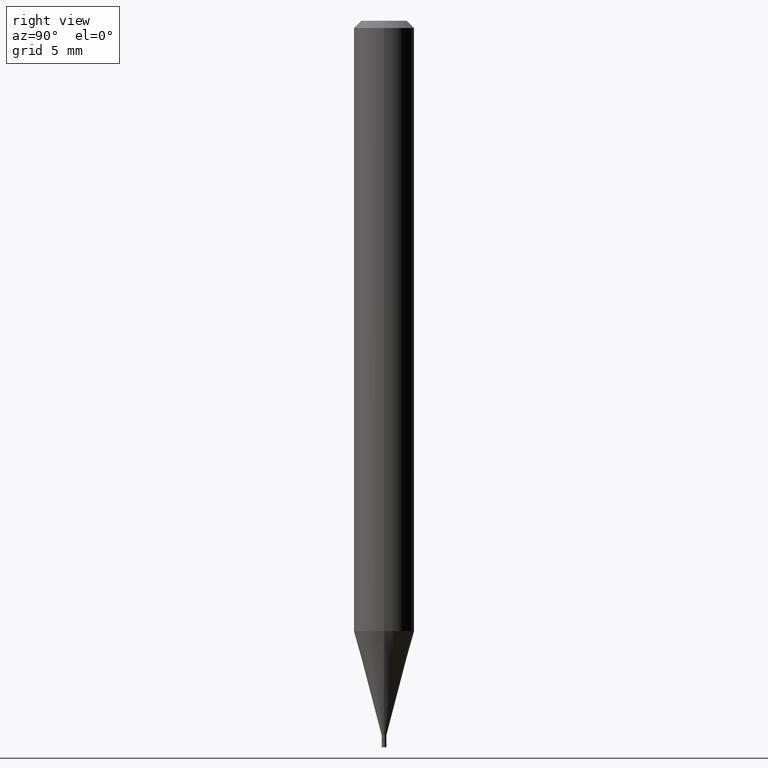
[diagram: clean part render]
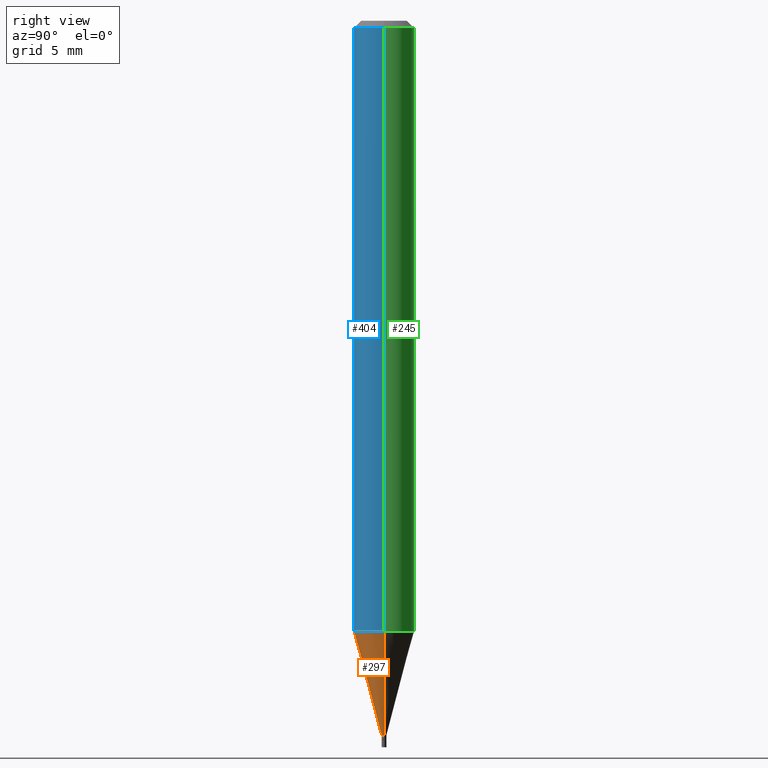
[diagram: same view with three faces highlighted in distinct colors, each labeled with its STEP entity id]
A machine part, right view with three faces highlighted in distinct colors.
Their STEP definitions:

[orange] entity #297 — the highlighted conical surface has half-angle 15 deg.
#16 = CONICAL_SURFACE ( 'NONE', #145, 0.004999999999999922042, 0.2617993877991500740 ) ;
#27 = VECTOR ( 'NONE', #324, 39.37007874015747433 ) ;
#29 = EDGE_LOOP ( 'NONE', ( #387, #248, #351, #170 ) ) ;
#34 = DIRECTION ( 'NONE',  ( -2.445468806185136597E-29, 3.491481338843145583E-15, 1.000000000000000000 ) ) ;
#38 = LINE ( 'NONE', #466, #389 ) ;
#54 = AXIS2_PLACEMENT_3D ( 'NONE', #241, #203, #342 ) ;
#68 = CARTESIAN_POINT ( 'NONE',  ( 0.004999999999999922042, -5.184849788182071492E-15, -1.475000000000000311 ) ) ;
#74 = DIRECTION ( 'NONE',  ( -2.445468806185136597E-29, 3.491481338843145583E-15, 1.000000000000000000 ) ) ;
#101 = CARTESIAN_POINT ( 'NONE',  ( 0.004999999999999922042, -5.184849788182071492E-15, -1.475000000000000311 ) ) ;
#144 = DIRECTION ( 'NONE',  ( -0.2588190451025213501, 5.211531920934551042E-15, 0.9659258262890682012 ) ) ;
#145 = AXIS2_PLACEMENT_3D ( 'NONE', #223, #74, #357 ) ;
#159 = EDGE_CURVE ( 'NONE', #174, #392, #194, .T. ) ;
#163 = AXIS2_PLACEMENT_3D ( 'NONE', #224, #34, #364 ) ;
#170 = ORIENTED_EDGE ( 'NONE', *, *, #159, .F. ) ;
#174 = VERTEX_POINT ( 'NONE', #420 ) ;
#183 = LINE ( 'NONE', #68, #27 ) ;
#194 = CIRCLE ( 'NONE', #54, 0.06250000000000000000 ) ;
#203 = DIRECTION ( 'NONE',  ( -2.445468806185136597E-29, 3.491481338843145583E-15, 1.000000000000000000 ) ) ;
#217 = FACE_OUTER_BOUND ( 'NONE', #29, .T. ) ;
#223 = CARTESIAN_POINT ( 'NONE',  ( 3.607066489123076592E-29, -5.149934974793640632E-15, -1.475000000000000311 ) ) ;
#224 = CARTESIAN_POINT ( 'NONE',  ( 3.607066489123076592E-29, -5.149934974793640632E-15, -1.475000000000000311 ) ) ;
#241 = CARTESIAN_POINT ( 'NONE',  ( 3.082286193725132894E-29, -4.400687794154770769E-15, -1.260407078564790062 ) ) ;
#248 = ORIENTED_EDGE ( 'NONE', *, *, #306, .T. ) ;
#257 = CARTESIAN_POINT ( 'NONE',  ( 0.06249999999999999306, -4.837122961510163228E-15, -1.260407078564790062 ) ) ;
#274 = VERTEX_POINT ( 'NONE', #390 ) ;
#295 = CIRCLE ( 'NONE', #163, 0.004999999999999922042 ) ;
#297 = ADVANCED_FACE ( 'NONE', ( #217 ), #16, .T. ) ;
#306 = EDGE_CURVE ( 'NONE', #274, #383, #295, .T. ) ;
#324 = DIRECTION ( 'NONE',  ( 0.2588190451025213501, 1.565188264969621968E-15, 0.9659258262890682012 ) ) ;
#342 = DIRECTION ( 'NONE',  ( 1.000000000000000000, -6.982962677686262766E-15, 0.000000000000000000 ) ) ;
#351 = ORIENTED_EDGE ( 'NONE', *, *, #431, .T. ) ;
#357 = DIRECTION ( 'NONE',  ( 1.000000000000000000, -6.982962677686247778E-15, 0.000000000000000000 ) ) ;
#364 = DIRECTION ( 'NONE',  ( 1.000000000000000000, -6.982962677686247778E-15, 0.000000000000000000 ) ) ;
#383 = VERTEX_POINT ( 'NONE', #101 ) ;
#387 = ORIENTED_EDGE ( 'NONE', *, *, #443, .F. ) ;
#389 = VECTOR ( 'NONE', #144, 39.37007874015747433 ) ;
#390 = CARTESIAN_POINT ( 'NONE',  ( -0.004999999999999922042, -4.535503211155172266E-15, -1.475000000000000311 ) ) ;
#392 = VERTEX_POINT ( 'NONE', #257 ) ;
#420 = CARTESIAN_POINT ( 'NONE',  ( -0.06249999999999999306, -3.956598584304708153E-15, -1.260407078564790062 ) ) ;
#431 = EDGE_CURVE ( 'NONE', #383, #392, #183, .T. ) ;
#443 = EDGE_CURVE ( 'NONE', #274, #174, #38, .T. ) ;
#466 = CARTESIAN_POINT ( 'NONE',  ( -0.004999999999999922042, -5.114407838005636380E-15, -1.475000000000000311 ) ) ;

[blue] entity #404 — the highlighted cylindrical surface (edge-blend (fillet) strip) has radius 1.5875 mm, axis along (-0, 0, 1).
#39 = CARTESIAN_POINT ( 'NONE',  ( -0.06250000000000000000, -1.782440797268646111E-15, -0.01499999999999999944 ) ) ;
#54 = AXIS2_PLACEMENT_3D ( 'NONE', #241, #203, #342 ) ;
#56 = ORIENTED_EDGE ( 'NONE', *, *, #363, .T. ) ;
#70 = CYLINDRICAL_SURFACE ( 'NONE', #272, 0.06250000000000000000 ) ;
#73 = FACE_OUTER_BOUND ( 'NONE', #291, .T. ) ;
#91 = VECTOR ( 'NONE', #378, 39.37007874015748143 ) ;
#108 = DIRECTION ( 'NONE',  ( 1.000000000000000000, -6.982962677686266711E-15, 0.000000000000000000 ) ) ;
#129 = ORIENTED_EDGE ( 'NONE', *, *, #352, .F. ) ;
#139 = AXIS2_PLACEMENT_3D ( 'NONE', #182, #178, #108 ) ;
#159 = EDGE_CURVE ( 'NONE', #174, #392, #194, .T. ) ;
#174 = VERTEX_POINT ( 'NONE', #420 ) ;
#178 = DIRECTION ( 'NONE',  ( -2.445468806185136597E-29, 3.491481338843145583E-15, 1.000000000000000000 ) ) ;
#182 = CARTESIAN_POINT ( 'NONE',  ( 3.668203209277705088E-31, -5.237222008264718399E-17, -0.01499999999999999944 ) ) ;
#194 = CIRCLE ( 'NONE', #54, 0.06250000000000000000 ) ;
#203 = DIRECTION ( 'NONE',  ( -2.445468806185136597E-29, 3.491481338843145583E-15, 1.000000000000000000 ) ) ;
#219 = CARTESIAN_POINT ( 'NONE',  ( 0.000000000000000000, 0.000000000000000000, 0.000000000000000000 ) ) ;
#234 = EDGE_CURVE ( 'NONE', #174, #347, #376, .T. ) ;
#241 = CARTESIAN_POINT ( 'NONE',  ( 3.082286193725132894E-29, -4.400687794154770769E-15, -1.260407078564790062 ) ) ;
#254 = DIRECTION ( 'NONE',  ( -2.445468806185136877E-29, 3.491481338843145188E-15, 1.000000000000000000 ) ) ;
#257 = CARTESIAN_POINT ( 'NONE',  ( 0.06249999999999999306, -4.837122961510163228E-15, -1.260407078564790062 ) ) ;
#259 = DIRECTION ( 'NONE',  ( -2.445468806185136597E-29, 3.491481338843145583E-15, 1.000000000000000000 ) ) ;
#272 = AXIS2_PLACEMENT_3D ( 'NONE', #219, #259, #294 ) ;
#282 = ORIENTED_EDGE ( 'NONE', *, *, #234, .F. ) ;
#291 = EDGE_LOOP ( 'NONE', ( #282, #428, #56, #129 ) ) ;
#294 = DIRECTION ( 'NONE',  ( 1.000000000000000000, -6.982962677686266711E-15, 4.876176775795935793E-29 ) ) ;
#320 = CARTESIAN_POINT ( 'NONE',  ( 0.06250000000000000000, -4.364351673553916694E-16, 3.047610484872459871E-30 ) ) ;
#322 = VECTOR ( 'NONE', #254, 39.37007874015748143 ) ;
#342 = DIRECTION ( 'NONE',  ( 1.000000000000000000, -6.982962677686262766E-15, 0.000000000000000000 ) ) ;
#344 = CIRCLE ( 'NONE', #139, 0.06250000000000000000 ) ;
#347 = VERTEX_POINT ( 'NONE', #39 ) ;
#352 = EDGE_CURVE ( 'NONE', #347, #409, #344, .T. ) ;
#358 = CARTESIAN_POINT ( 'NONE',  ( 0.06250000000000000000, -4.888073874380388472E-16, -0.01499999999999999944 ) ) ;
#361 = LINE ( 'NONE', #320, #322 ) ;
#363 = EDGE_CURVE ( 'NONE', #392, #409, #361, .T. ) ;
#376 = LINE ( 'NONE', #411, #91 ) ;
#378 = DIRECTION ( 'NONE',  ( -2.445468806185136877E-29, 3.491481338843145188E-15, 1.000000000000000000 ) ) ;
#392 = VERTEX_POINT ( 'NONE', #257 ) ;
#404 = ADVANCED_FACE ( 'NONE', ( #73 ), #70, .T. ) ;
#409 = VERTEX_POINT ( 'NONE', #358 ) ;
#411 = CARTESIAN_POINT ( 'NONE',  ( -0.06250000000000000000, 4.440892098500626162E-16, -3.074334431409316114E-30 ) ) ;
#420 = CARTESIAN_POINT ( 'NONE',  ( -0.06249999999999999306, -3.956598584304708153E-15, -1.260407078564790062 ) ) ;
#428 = ORIENTED_EDGE ( 'NONE', *, *, #159, .T. ) ;

[green] entity #245 — the highlighted cylindrical surface (edge-blend (fillet) strip) has radius 1.5875 mm, axis along (-0, 0, 1).
#25 = ORIENTED_EDGE ( 'NONE', *, *, #326, .T. ) ;
#39 = CARTESIAN_POINT ( 'NONE',  ( -0.06250000000000000000, -1.782440797268646111E-15, -0.01499999999999999944 ) ) ;
#57 = CYLINDRICAL_SURFACE ( 'NONE', #271, 0.06250000000000000000 ) ;
#59 = ORIENTED_EDGE ( 'NONE', *, *, #62, .F. ) ;
#62 = EDGE_CURVE ( 'NONE', #409, #347, #460, .T. ) ;
#64 = DIRECTION ( 'NONE',  ( 1.000000000000000000, -6.982962677686266711E-15, 4.876176775795935793E-29 ) ) ;
#67 = ORIENTED_EDGE ( 'NONE', *, *, #234, .T. ) ;
#91 = VECTOR ( 'NONE', #378, 39.37007874015748143 ) ;
#97 = CARTESIAN_POINT ( 'NONE',  ( 0.000000000000000000, 0.000000000000000000, 0.000000000000000000 ) ) ;
#174 = VERTEX_POINT ( 'NONE', #420 ) ;
#230 = DIRECTION ( 'NONE',  ( -2.445468806185136597E-29, 3.491481338843145583E-15, 1.000000000000000000 ) ) ;
#234 = EDGE_CURVE ( 'NONE', #174, #347, #376, .T. ) ;
#236 = FACE_OUTER_BOUND ( 'NONE', #244, .T. ) ;
#244 = EDGE_LOOP ( 'NONE', ( #25, #67, #59, #450 ) ) ;
#245 = ADVANCED_FACE ( 'NONE', ( #236 ), #57, .T. ) ;
#249 = AXIS2_PLACEMENT_3D ( 'NONE', #325, #362, #323 ) ;
#254 = DIRECTION ( 'NONE',  ( -2.445468806185136877E-29, 3.491481338843145188E-15, 1.000000000000000000 ) ) ;
#257 = CARTESIAN_POINT ( 'NONE',  ( 0.06249999999999999306, -4.837122961510163228E-15, -1.260407078564790062 ) ) ;
#260 = DIRECTION ( 'NONE',  ( 1.000000000000000000, -6.982962677686266711E-15, 0.000000000000000000 ) ) ;
#271 = AXIS2_PLACEMENT_3D ( 'NONE', #97, #313, #64 ) ;
#313 = DIRECTION ( 'NONE',  ( -2.445468806185136597E-29, 3.491481338843145583E-15, 1.000000000000000000 ) ) ;
#320 = CARTESIAN_POINT ( 'NONE',  ( 0.06250000000000000000, -4.364351673553916694E-16, 3.047610484872459871E-30 ) ) ;
#322 = VECTOR ( 'NONE', #254, 39.37007874015748143 ) ;
#323 = DIRECTION ( 'NONE',  ( 1.000000000000000000, -6.982962677686262766E-15, 0.000000000000000000 ) ) ;
#325 = CARTESIAN_POINT ( 'NONE',  ( 3.082286193725132894E-29, -4.400687794154770769E-15, -1.260407078564790062 ) ) ;
#326 = EDGE_CURVE ( 'NONE', #392, #174, #328, .T. ) ;
#328 = CIRCLE ( 'NONE', #249, 0.06250000000000000000 ) ;
#347 = VERTEX_POINT ( 'NONE', #39 ) ;
#358 = CARTESIAN_POINT ( 'NONE',  ( 0.06250000000000000000, -4.888073874380388472E-16, -0.01499999999999999944 ) ) ;
#361 = LINE ( 'NONE', #320, #322 ) ;
#362 = DIRECTION ( 'NONE',  ( -2.445468806185136597E-29, 3.491481338843145583E-15, 1.000000000000000000 ) ) ;
#363 = EDGE_CURVE ( 'NONE', #392, #409, #361, .T. ) ;
#376 = LINE ( 'NONE', #411, #91 ) ;
#378 = DIRECTION ( 'NONE',  ( -2.445468806185136877E-29, 3.491481338843145188E-15, 1.000000000000000000 ) ) ;
#392 = VERTEX_POINT ( 'NONE', #257 ) ;
#394 = AXIS2_PLACEMENT_3D ( 'NONE', #433, #230, #260 ) ;
#409 = VERTEX_POINT ( 'NONE', #358 ) ;
#411 = CARTESIAN_POINT ( 'NONE',  ( -0.06250000000000000000, 4.440892098500626162E-16, -3.074334431409316114E-30 ) ) ;
#420 = CARTESIAN_POINT ( 'NONE',  ( -0.06249999999999999306, -3.956598584304708153E-15, -1.260407078564790062 ) ) ;
#433 = CARTESIAN_POINT ( 'NONE',  ( 3.668203209277705088E-31, -5.237222008264718399E-17, -0.01499999999999999944 ) ) ;
#450 = ORIENTED_EDGE ( 'NONE', *, *, #363, .F. ) ;
#460 = CIRCLE ( 'NONE', #394, 0.06250000000000000000 ) ;